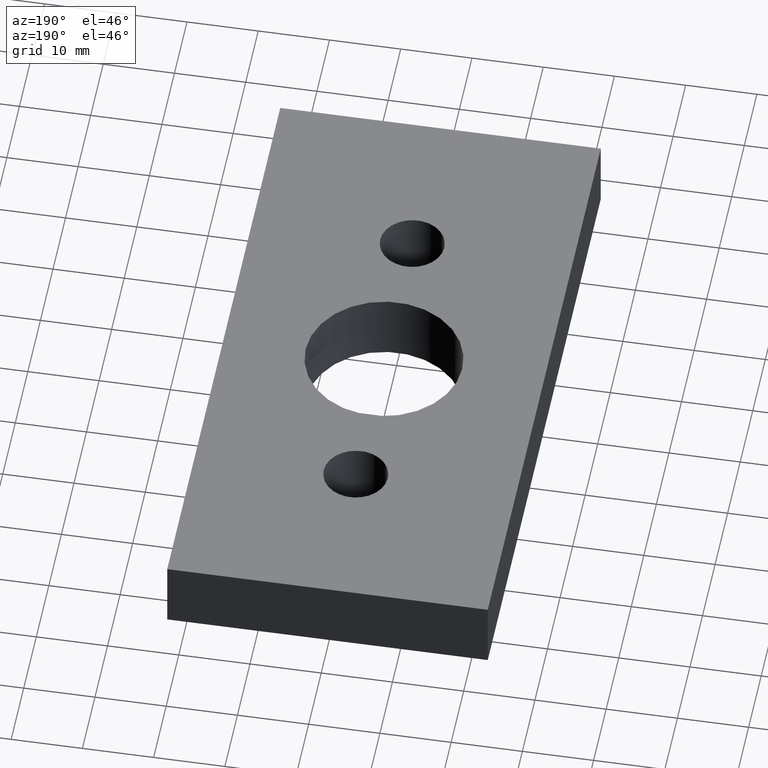
[diagram: clean part render]
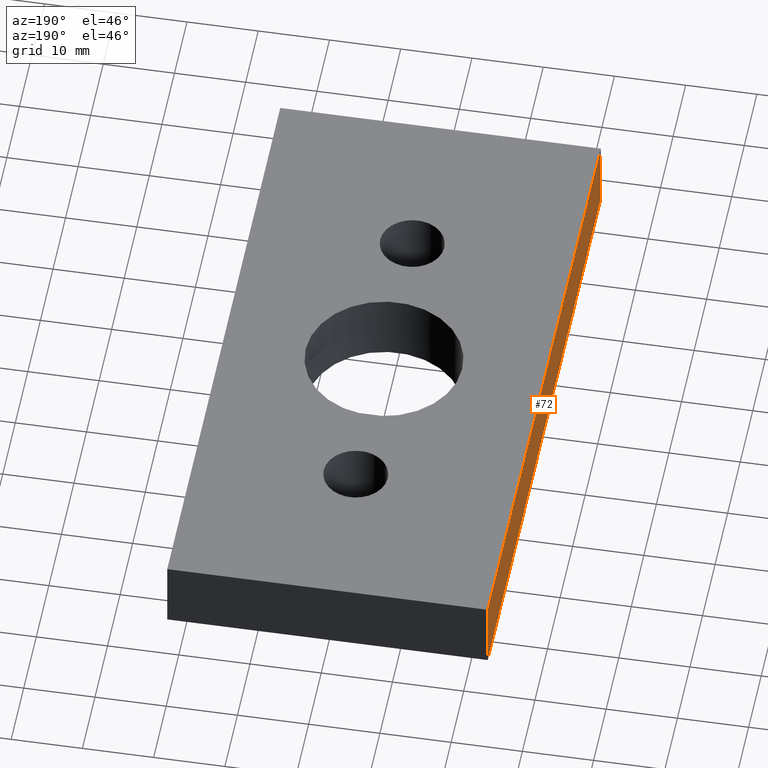
[diagram: same view with one face highlighted and labeled with its STEP entity id]
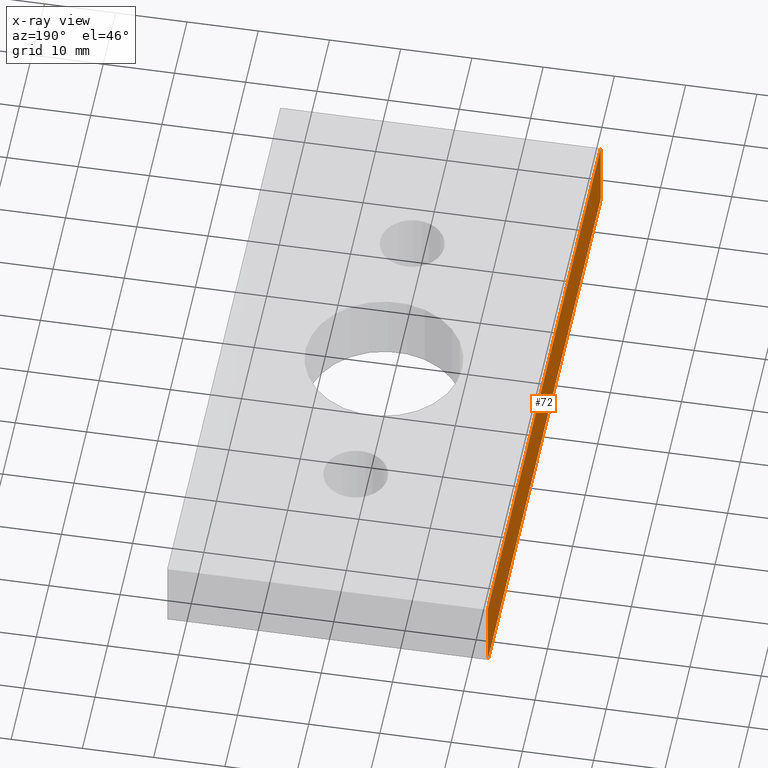
[diagram: x-ray of the same camera — body ghosted, the highlighted face saturated]
A machine part, auxiliary view. The second image highlights one B-rep face of the part: STEP entity #72.
The next image is the same camera in x-ray: the body ghosted, the highlighted face saturated — about 0% of this face is hidden behind the body in this view.
In plain terms, the highlighted planar face has unit normal (-1, 0, 0).
Its self-contained STEP definition (entity closure, byte-faithful):
#9=CARTESIAN_POINT('',(-22.499999999999993,45.0,0.0));
#10=VERTEX_POINT('',#9);
#17=CARTESIAN_POINT('',(-22.499999999999993,45.0,10.0));
#18=VERTEX_POINT('',#17);
#19=CARTESIAN_POINT('',(-22.499999999999993,45.0,0.0));
#20=DIRECTION('',(0.0,0.0,1.0));
#21=VECTOR('',#20,10.0);
#22=LINE('',#19,#21);
#23=EDGE_CURVE('',#10,#18,#22,.T.);
#42=CARTESIAN_POINT('',(-22.499999999999993,45.0,0.0));
#43=DIRECTION('',(-1.0,0.0,0.0));
#44=DIRECTION('',(0.0,-1.0,0.0));
#45=AXIS2_PLACEMENT_3D('',#42,#43,#44);
#46=PLANE('',#45);
#47=CARTESIAN_POINT('',(-22.499999999999993,-45.0,0.0));
#48=VERTEX_POINT('',#47);
#49=CARTESIAN_POINT('',(-22.499999999999993,45.0,0.0));
#50=DIRECTION('',(0.0,-1.0,0.0));
#51=VECTOR('',#50,90.0);
#52=LINE('',#49,#51);
#53=EDGE_CURVE('',#10,#48,#52,.T.);
#54=ORIENTED_EDGE('',*,*,#53,.T.);
#55=CARTESIAN_POINT('',(-22.499999999999993,-45.0,10.0));
#56=VERTEX_POINT('',#55);
#57=CARTESIAN_POINT('',(-22.499999999999993,-45.0,0.0));
#58=DIRECTION('',(0.0,0.0,1.0));
#59=VECTOR('',#58,10.0);
#60=LINE('',#57,#59);
#61=EDGE_CURVE('',#48,#56,#60,.T.);
#62=ORIENTED_EDGE('',*,*,#61,.T.);
#63=CARTESIAN_POINT('',(-22.499999999999993,45.0,10.0));
#64=DIRECTION('',(0.0,-1.0,0.0));
#65=VECTOR('',#64,90.0);
#66=LINE('',#63,#65);
#67=EDGE_CURVE('',#18,#56,#66,.T.);
#68=ORIENTED_EDGE('',*,*,#67,.F.);
#69=ORIENTED_EDGE('',*,*,#23,.F.);
#70=EDGE_LOOP('',(#54,#62,#68,#69));
#71=FACE_OUTER_BOUND('',#70,.T.);
#72=ADVANCED_FACE('',(#71),#46,.T.);